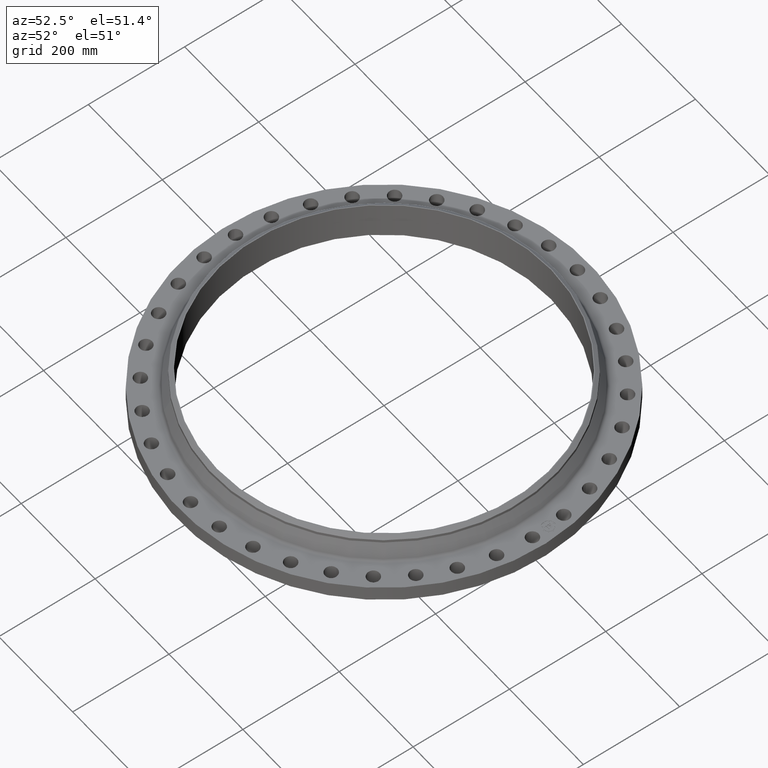
[diagram: clean part render]
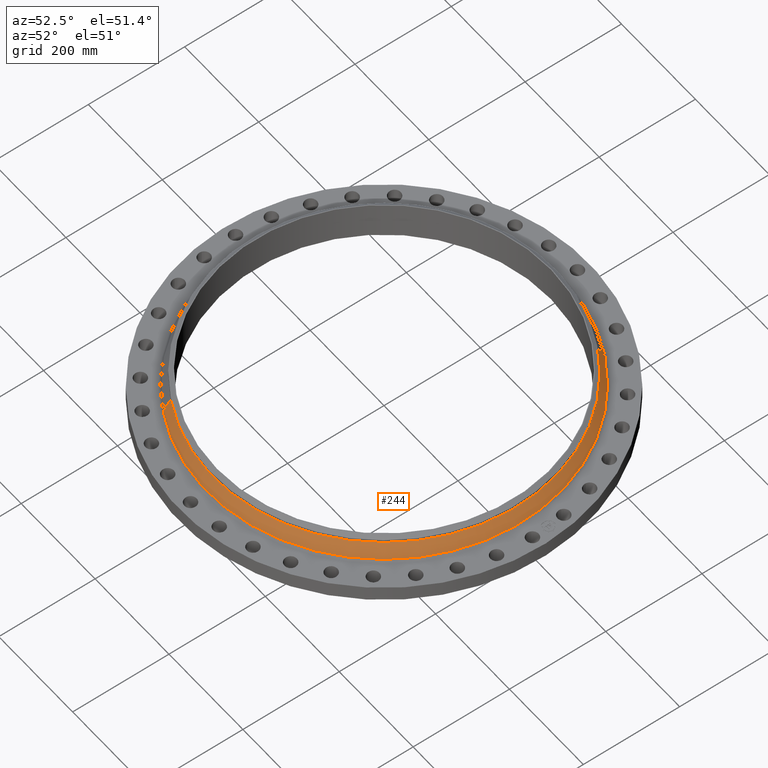
[diagram: same view with one face highlighted and labeled with its STEP entity id]
A machine part, auxiliary view. The second image highlights one B-rep face of the part: STEP entity #244.
In plain terms, the highlighted conical surface has half-angle 23.917 deg.
Its self-contained STEP definition (entity closure, byte-faithful):
#180=AXIS2_PLACEMENT_3D('Circle Axis2P3D',#178,#179,$) ;
#217=AXIS2_PLACEMENT_3D('Cone Axis2P3D',#214,#215,#216) ;
#228=AXIS2_PLACEMENT_3D('Circle Axis2P3D',#226,#227,$) ;
#175=CARTESIAN_POINT('Vertex',(6.95122750372,12.7241365964,1.39864782273)) ;
#178=CARTESIAN_POINT('Axis2P3D Location',(0.,0.,1.39864782273)) ;
#182=CARTESIAN_POINT('Vertex',(-6.95122750372,-12.7241365964,1.39864782273)) ;
#214=CARTESIAN_POINT('Axis2P3D Location',(0.,0.,2.52398984383)) ;
#219=CARTESIAN_POINT('Line Origine',(6.8315925221,12.5051462314,1.96131883328)) ;
#223=CARTESIAN_POINT('Vertex',(6.71195754049,12.2861558665,2.52398984383)) ;
#226=CARTESIAN_POINT('Axis2P3D Location',(0.,0.,2.52398984383)) ;
#230=CARTESIAN_POINT('Vertex',(-6.71195754049,-12.2861558665,2.52398984383)) ;
#233=CARTESIAN_POINT('Line Origine',(-6.8315925221,-12.5051462314,1.96131883328)) ;
#179=DIRECTION('Axis2P3D Direction',(0.,0.,-0.0393700787402)) ;
#215=DIRECTION('Axis2P3D Direction',(0.,0.,-0.0393700787402)) ;
#216=DIRECTION('Axis2P3D XDirection',(0.0188750212049,0.0345504945626,0.)) ;
#220=DIRECTION('Vector Direction',(0.00765209798064,0.0140070713989,-0.0359895880405)) ;
#227=DIRECTION('Axis2P3D Direction',(0.,0.,-0.0393700787402)) ;
#234=DIRECTION('Vector Direction',(-0.00765209798064,-0.0140070713989,-0.0359895880405)) ;
#221=VECTOR('Line Direction',#220,0.0393700787402) ;
#235=VECTOR('Line Direction',#234,0.0393700787402) ;
#239=ORIENTED_EDGE('',*,*,#184,.F.) ;
#240=ORIENTED_EDGE('',*,*,#225,.T.) ;
#241=ORIENTED_EDGE('',*,*,#232,.T.) ;
#242=ORIENTED_EDGE('',*,*,#237,.F.) ;
#244=ADVANCED_FACE('PartBody',(#243),#218,.T.) ;
#181=CIRCLE('generated circle',#180,14.499076382) ;
#229=CIRCLE('generated circle',#228,14.0000000001) ;
#218=CONICAL_SURFACE('Cone',#217,14.0000000001,0.417425885319) ;
#184=EDGE_CURVE('',#176,#183,#181,.T.) ;
#225=EDGE_CURVE('',#176,#224,#222,.F.) ;
#232=EDGE_CURVE('',#224,#231,#229,.T.) ;
#237=EDGE_CURVE('',#183,#231,#236,.F.) ;
#238=EDGE_LOOP('',(#239,#240,#241,#242)) ;
#243=FACE_OUTER_BOUND('',#238,.T.) ;
#222=LINE('Line',#219,#221) ;
#236=LINE('Line',#233,#235) ;
#176=VERTEX_POINT('',#175) ;
#183=VERTEX_POINT('',#182) ;
#224=VERTEX_POINT('',#223) ;
#231=VERTEX_POINT('',#230) ;